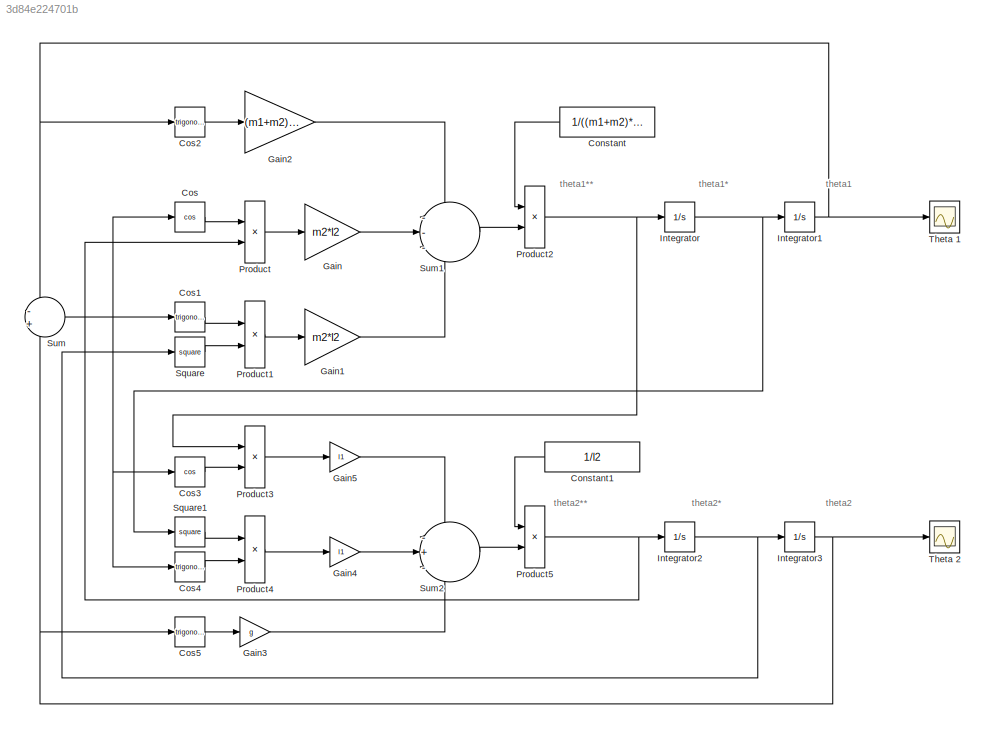
MODEL slx_3d84e224701b
KIND model
CONFIG AbsTol = auto
CONFIG EnableMultiTasking = off
CONFIG FixedStep = auto
CONFIG MaxStep = 0.00001
CONFIG MinStep = auto
CONFIG RelTol = 1e-3
CONFIG SampleTimeConstraint = Unconstrained
CONFIG SolverName = VariableStepAuto
CONFIG StartTime = 0.0
CONFIG StopTime = T
BLOCK [Constant] Constant
  NameLocation = top
  Value = 1/((m1+m2)*l1)
BLOCK [Constant] Constant1
  NameLocation = top
  Value = 1/l2
BLOCK [Trigonometry] Cos
  Operator = cos
BLOCK [Trigonometry] Cos1
BLOCK [Trigonometry] Cos2
BLOCK [Trigonometry] Cos3
  Operator = cos
BLOCK [Trigonometry] Cos4
BLOCK [Trigonometry] Cos5
BLOCK [Gain] Gain
  Gain = m2*l2
BLOCK [Gain] Gain1
  Gain = m2*l2
BLOCK [Gain] Gain2
  Gain = (m1+m2)*g
BLOCK [Gain] Gain3
  Gain = g
BLOCK [Gain] Gain4
  Gain = l1
BLOCK [Gain] Gain5
  Gain = l1
BLOCK [Integrator] Integrator
BLOCK [Integrator] Integrator1
BLOCK [Integrator] Integrator2
BLOCK [Integrator] Integrator3
  InitialCondition = 35*pi/180
BLOCK [Product] Product
BLOCK [Product] Product1
BLOCK [Product] Product2
BLOCK [Product] Product3
BLOCK [Product] Product4
BLOCK [Product] Product5
BLOCK [Math] Square
  Operator = square
BLOCK [Math] Square1
  Operator = square
BLOCK [Sum] Sum
  Inputs = -+
BLOCK [Sum] Sum1
  Inputs = ---
BLOCK [Sum] Sum2
  Inputs = -+-
BLOCK [Scope] Theta 1
  Floating = off
  NumInputPorts = 1
  ScopeSpecificationString = Simulink.scopes.TimeScopeBlockCfg('CurrentConfiguration', extmgr.ConfigurationSet(extmgr.Configuration('Core','General UI',true),extmgr.Configuration('Core','Source UI',true),extmgr.Configuration('Sources','WiredSimulink',true),extmgr.Configuration('Visuals','Time Domain',true,'SerializedDisplays',{struct('MinYLimReal','-0.3544','MaxYLimReal','0.36636','YLabelReal','','MinYLimMag','0.00000','MaxYL...<+1366ch>
BLOCK [Scope] Theta 2
  Floating = off
  NumInputPorts = 1
  ScopeSpecificationString = Simulink.scopes.TimeScopeBlockCfg('CurrentConfiguration', extmgr.ConfigurationSet(extmgr.Configuration('Core','General UI',true),extmgr.Configuration('Core','Source UI',true),extmgr.Configuration('Sources','WiredSimulink',true,'DataLoggingVariableName','ScopeData1'),extmgr.Configuration('Visuals','Time Domain',true,'SerializedDisplays',{struct('MinYLimReal','-0.74531','MaxYLimReal','0.76155','YLab...<+1406ch>
ANNOTATION (root): theta1**
ANNOTATION (root): theta1*
ANNOTATION (root): theta1
ANNOTATION (root): theta2**
ANNOTATION (root): theta2*
ANNOTATION (root): theta2
LINE Constant1:1 -> Product5:1
LINE Constant:1 -> Product2:1
LINE Cos1:1 -> Product1:1
LINE Cos2:1 -> Gain2:1
LINE Cos3:1 -> Product3:2
LINE Cos4:1 -> Product4:2
LINE Cos5:1 -> Gain3:1
LINE Cos:1 -> Product:1
LINE Gain1:1 -> Sum1:3
LINE Gain2:1 -> Sum1:1
LINE Gain3:1 -> Sum2:3
LINE Gain4:1 -> Sum2:2
LINE Gain5:1 -> Sum2:1
LINE Gain:1 -> Sum1:2
NET Integrator1:1 -> Cos2:1, Sum:1, Theta 1:1
NET Integrator2:1 -> Integrator3:1, Square:1
NET Integrator3:1 -> Cos5:1, Sum:2, Theta 2:1
NET Integrator:1 -> Integrator1:1, Square1:1
LINE Product1:1 -> Gain1:1
NET Product2:1 -> Integrator:1, Product3:1
LINE Product3:1 -> Gain5:1
LINE Product4:1 -> Gain4:1
NET Product5:1 -> Integrator2:1, Product:2
LINE Product:1 -> Gain:1
LINE Square1:1 -> Product4:1
LINE Square:1 -> Product1:2
LINE Sum1:1 -> Product2:2
LINE Sum2:1 -> Product5:2
NET Sum:1 -> Cos1:1, Cos3:1, Cos4:1, Cos:1
note: NET lines group one-source signal fan-out (src -> all destinations, sorted); 1:1 wires keep LINE
